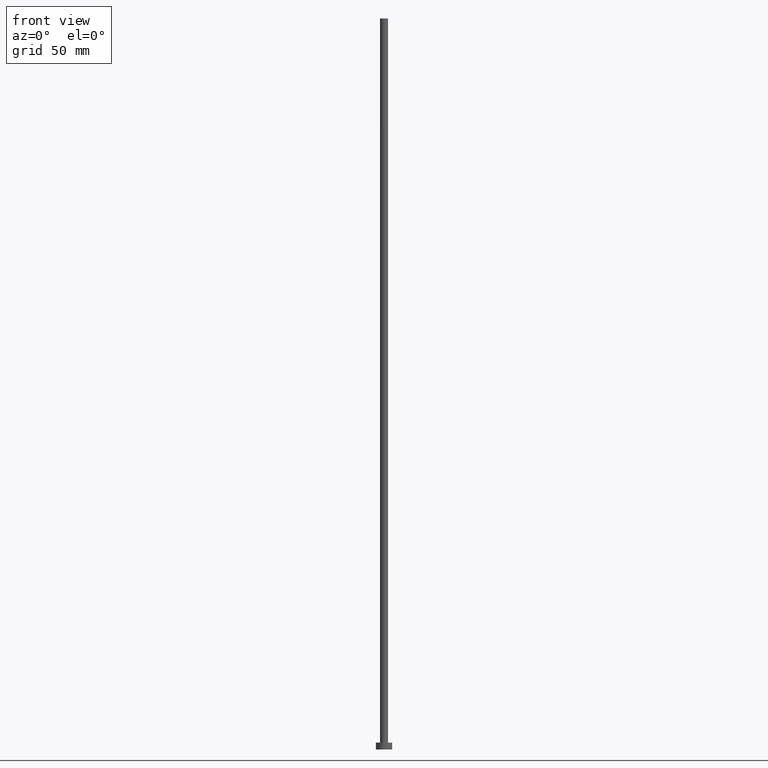
[diagram: clean part render]
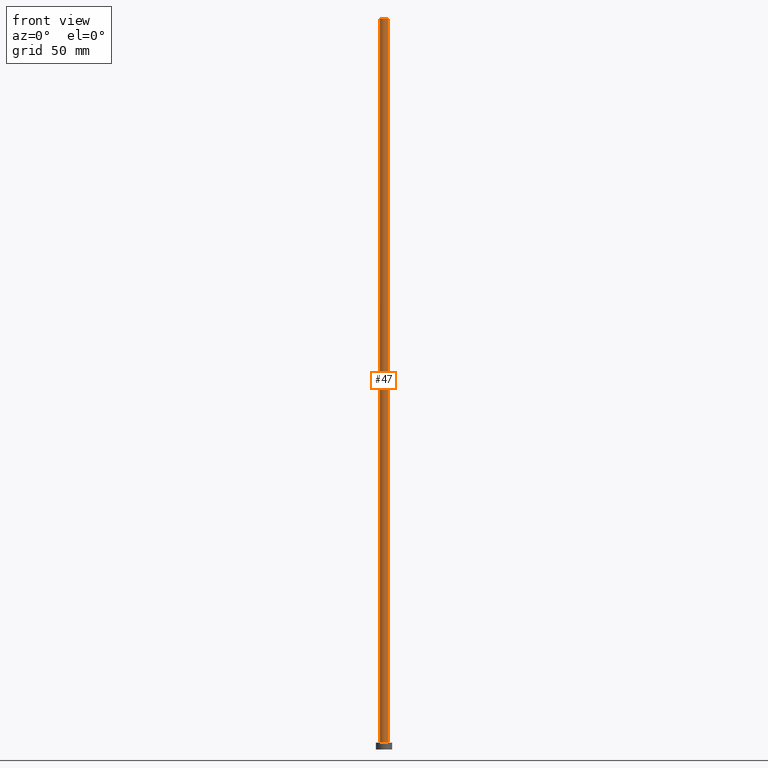
[diagram: same view with one face highlighted and labeled with its STEP entity id]
A machine part, front view. The second image highlights one B-rep face of the part: STEP entity #47.
In plain terms, the highlighted cylindrical surface (edge-blend (fillet) strip) has radius 1.75 mm, axis along (-0, -0, -1).
Its self-contained STEP definition (entity closure, byte-faithful):
#4 = DIRECTION ( 'NONE',  ( 1.000000000000000000, 0.000000000000000000, 0.000000000000000000 ) ) ;
#6 = CARTESIAN_POINT ( 'NONE',  ( -1.750000000000000000, 0.000000000000000000, 315.0000000000000000 ) ) ;
#10 = DIRECTION ( 'NONE',  ( 1.000000000000000000, 0.000000000000000000, 0.000000000000000000 ) ) ;
#15 = DIRECTION ( 'NONE',  ( -0.000000000000000000, -0.000000000000000000, -1.000000000000000000 ) ) ;
#20 = DIRECTION ( 'NONE',  ( 0.000000000000000000, 0.000000000000000000, 1.000000000000000000 ) ) ;
#26 = EDGE_CURVE ( 'NONE', #211, #188, #53, .T. ) ;
#47 = ADVANCED_FACE ( 'NONE', ( #88 ), #74, .T. ) ;
#49 = VECTOR ( 'NONE', #15, 1000.000000000000000 ) ;
#53 = LINE ( 'NONE', #241, #49 ) ;
#66 = EDGE_CURVE ( 'NONE', #235, #211, #129, .T. ) ;
#74 = CYLINDRICAL_SURFACE ( 'NONE', #196, 1.750000000000000000 ) ;
#79 = DIRECTION ( 'NONE',  ( 0.000000000000000000, 0.000000000000000000, 1.000000000000000000 ) ) ;
#80 = LINE ( 'NONE', #6, #204 ) ;
#81 = AXIS2_PLACEMENT_3D ( 'NONE', #100, #79, #10 ) ;
#88 = FACE_OUTER_BOUND ( 'NONE', #214, .T. ) ;
#100 = CARTESIAN_POINT ( 'NONE',  ( 0.000000000000000000, 0.000000000000000000, 3.000000000000000000 ) ) ;
#102 = ORIENTED_EDGE ( 'NONE', *, *, #255, .T. ) ;
#114 = DIRECTION ( 'NONE',  ( -1.000000000000000000, 0.000000000000000000, 0.000000000000000000 ) ) ;
#120 = CARTESIAN_POINT ( 'NONE',  ( 1.750000000000000000, 2.143131898507868297E-16, 3.000000000000000000 ) ) ;
#129 = CIRCLE ( 'NONE', #221, 1.750000000000000000 ) ;
#140 = CARTESIAN_POINT ( 'NONE',  ( 1.750000000000000000, 2.143131898507868297E-16, 315.0000000000000000 ) ) ;
#153 = ORIENTED_EDGE ( 'NONE', *, *, #249, .T. ) ;
#155 = CARTESIAN_POINT ( 'NONE',  ( 0.000000000000000000, 0.000000000000000000, 315.0000000000000000 ) ) ;
#157 = CARTESIAN_POINT ( 'NONE',  ( 0.000000000000000000, 0.000000000000000000, 315.0000000000000000 ) ) ;
#176 = DIRECTION ( 'NONE',  ( -0.000000000000000000, -0.000000000000000000, -1.000000000000000000 ) ) ;
#177 = DIRECTION ( 'NONE',  ( -0.000000000000000000, -0.000000000000000000, -1.000000000000000000 ) ) ;
#181 = CARTESIAN_POINT ( 'NONE',  ( -1.750000000000000000, 0.000000000000000000, 3.000000000000000000 ) ) ;
#188 = VERTEX_POINT ( 'NONE', #120 ) ;
#196 = AXIS2_PLACEMENT_3D ( 'NONE', #157, #176, #114 ) ;
#199 = CARTESIAN_POINT ( 'NONE',  ( -1.750000000000000000, 0.000000000000000000, 315.0000000000000000 ) ) ;
#204 = VECTOR ( 'NONE', #177, 1000.000000000000000 ) ;
#211 = VERTEX_POINT ( 'NONE', #140 ) ;
#214 = EDGE_LOOP ( 'NONE', ( #216, #240, #102, #153 ) ) ;
#216 = ORIENTED_EDGE ( 'NONE', *, *, #26, .F. ) ;
#221 = AXIS2_PLACEMENT_3D ( 'NONE', #155, #20, #4 ) ;
#229 = CIRCLE ( 'NONE', #81, 1.750000000000000000 ) ;
#235 = VERTEX_POINT ( 'NONE', #199 ) ;
#238 = VERTEX_POINT ( 'NONE', #181 ) ;
#240 = ORIENTED_EDGE ( 'NONE', *, *, #66, .F. ) ;
#241 = CARTESIAN_POINT ( 'NONE',  ( 1.750000000000000000, 2.143131898507868297E-16, 315.0000000000000000 ) ) ;
#249 = EDGE_CURVE ( 'NONE', #238, #188, #229, .T. ) ;
#255 = EDGE_CURVE ( 'NONE', #235, #238, #80, .T. ) ;